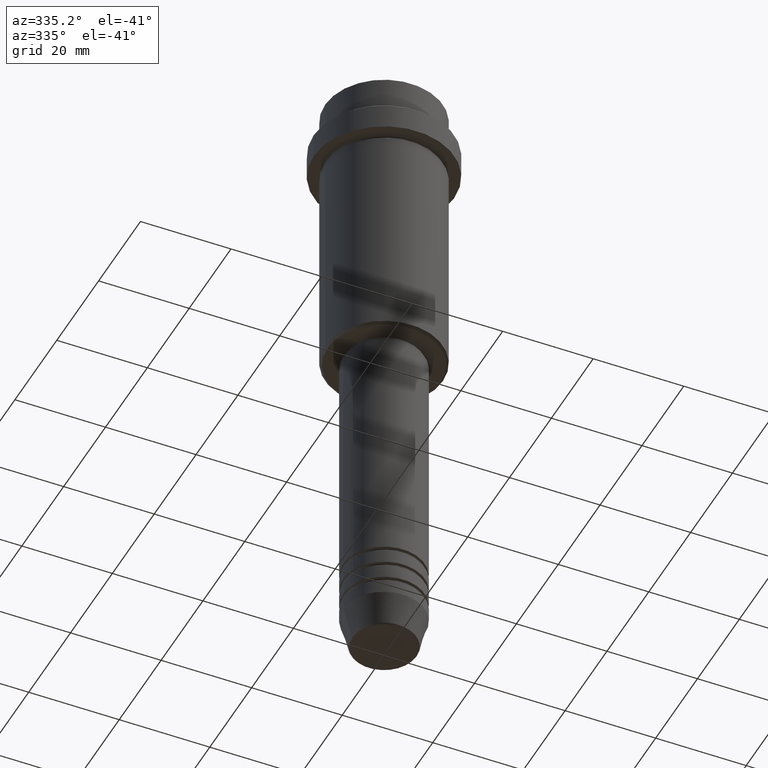
[diagram: clean part render]
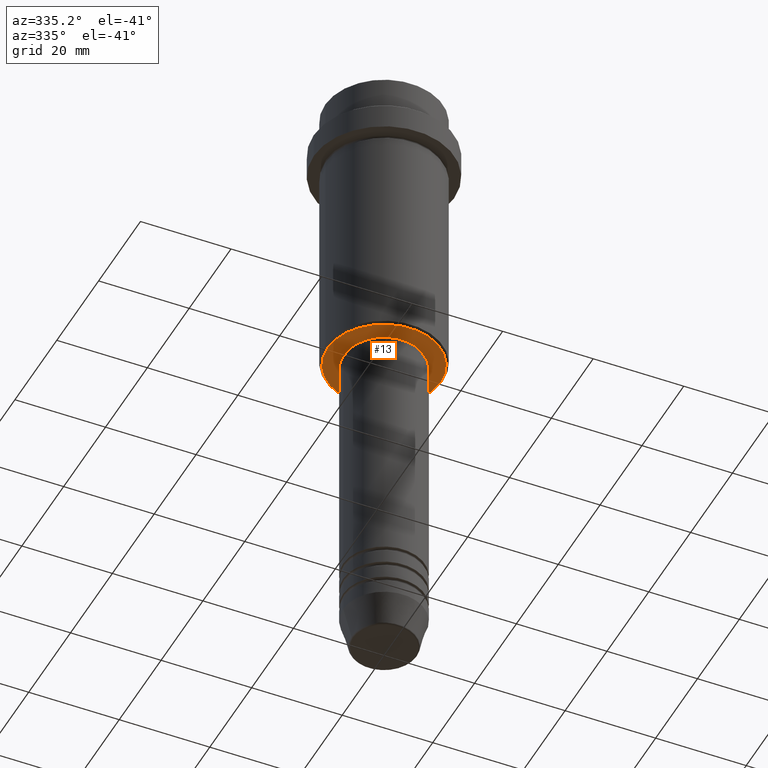
[diagram: same view with one face highlighted and labeled with its STEP entity id]
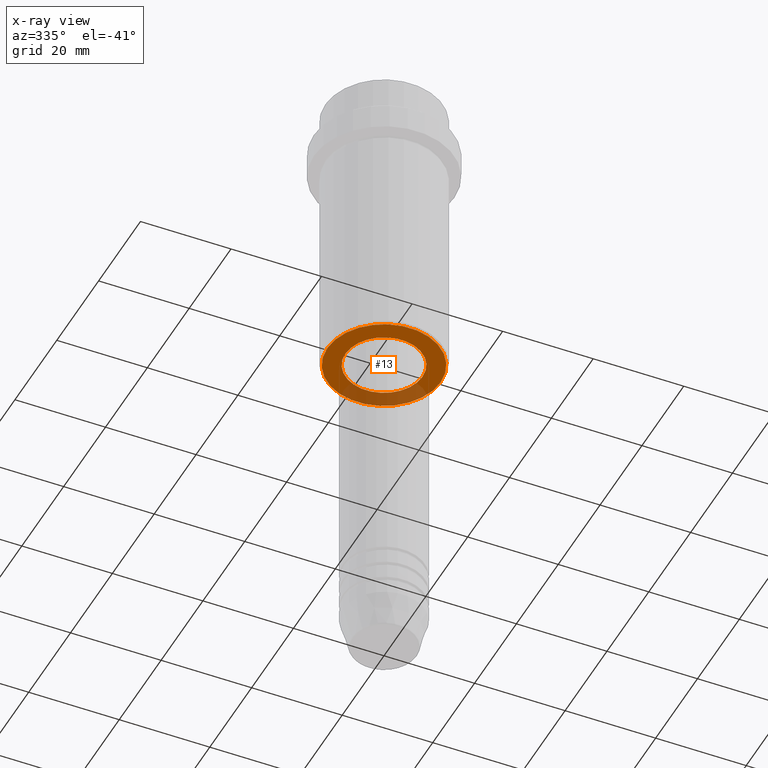
[diagram: x-ray of the same camera — body ghosted, the highlighted face saturated]
A machine part, auxiliary view. The second image highlights one B-rep face of the part: STEP entity #13.
The next image is the same camera in x-ray: the body ghosted, the highlighted face saturated — about 26% of this face is hidden behind the body in this view.
In plain terms, the highlighted planar face has unit normal (0, 0, -1).
Its self-contained STEP definition (entity closure, byte-faithful):
#13 = ADVANCED_FACE ( 'NONE', ( #341, #694 ), #1009, .T. ) ;
#37 = DIRECTION ( 'NONE',  ( 0.000000000000000000, 0.000000000000000000, -1.000000000000000000 ) ) ;
#98 = CARTESIAN_POINT ( 'NONE',  ( 0.000000000000000000, 0.000000000000000000, -65.00000000000001421 ) ) ;
#115 = CARTESIAN_POINT ( 'NONE',  ( -8.499999999999994671, 1.040949779275249745E-15, -65.00000000000001421 ) ) ;
#168 = DIRECTION ( 'NONE',  ( -1.000000000000000000, 0.000000000000000000, 0.000000000000000000 ) ) ;
#206 = CARTESIAN_POINT ( 'NONE',  ( 12.49999999999999645, 0.000000000000000000, -65.00000000000001421 ) ) ;
#222 = AXIS2_PLACEMENT_3D ( 'NONE', #673, #894, #344 ) ;
#268 = VERTEX_POINT ( 'NONE', #789 ) ;
#341 = FACE_OUTER_BOUND ( 'NONE', #933, .T. ) ;
#344 = DIRECTION ( 'NONE',  ( 1.000000000000000000, 0.000000000000000000, 0.000000000000000000 ) ) ;
#427 = DIRECTION ( 'NONE',  ( 1.000000000000000000, 0.000000000000000000, 0.000000000000000000 ) ) ;
#517 = CARTESIAN_POINT ( 'NONE',  ( 0.000000000000000000, 0.000000000000000000, -65.00000000000001421 ) ) ;
#529 = AXIS2_PLACEMENT_3D ( 'NONE', #921, #37, #1249 ) ;
#556 = EDGE_LOOP ( 'NONE', ( #732, #1163 ) ) ;
#563 = CIRCLE ( 'NONE', #747, 8.499999999999994671 ) ;
#605 = DIRECTION ( 'NONE',  ( 0.000000000000000000, 0.000000000000000000, -1.000000000000000000 ) ) ;
#629 = DIRECTION ( 'NONE',  ( 0.000000000000000000, 0.000000000000000000, -1.000000000000000000 ) ) ;
#632 = EDGE_CURVE ( 'NONE', #740, #268, #563, .T. ) ;
#654 = AXIS2_PLACEMENT_3D ( 'NONE', #1051, #605, #168 ) ;
#673 = CARTESIAN_POINT ( 'NONE',  ( 0.000000000000000000, 0.000000000000000000, -65.00000000000001421 ) ) ;
#694 = FACE_BOUND ( 'NONE', #556, .T. ) ;
#732 = ORIENTED_EDGE ( 'NONE', *, *, #918, .T. ) ;
#740 = VERTEX_POINT ( 'NONE', #115 ) ;
#747 = AXIS2_PLACEMENT_3D ( 'NONE', #98, #1177, #427 ) ;
#789 = CARTESIAN_POINT ( 'NONE',  ( 8.499999999999994671, 0.000000000000000000, -65.00000000000001421 ) ) ;
#807 = ORIENTED_EDGE ( 'NONE', *, *, #1203, .T. ) ;
#894 = DIRECTION ( 'NONE',  ( -0.000000000000000000, -0.000000000000000000, 1.000000000000000000 ) ) ;
#897 = VERTEX_POINT ( 'NONE', #1103 ) ;
#918 = EDGE_CURVE ( 'NONE', #268, #740, #1401, .T. ) ;
#921 = CARTESIAN_POINT ( 'NONE',  ( 0.000000000000000000, 13.00000000000000000, -65.00000000000001421 ) ) ;
#933 = EDGE_LOOP ( 'NONE', ( #807, #1202 ) ) ;
#984 = AXIS2_PLACEMENT_3D ( 'NONE', #517, #629, #1272 ) ;
#1009 = PLANE ( 'NONE',  #529 ) ;
#1027 = CIRCLE ( 'NONE', #984, 12.49999999999999645 ) ;
#1051 = CARTESIAN_POINT ( 'NONE',  ( 0.000000000000000000, 0.000000000000000000, -65.00000000000001421 ) ) ;
#1103 = CARTESIAN_POINT ( 'NONE',  ( -12.49999999999999645, 1.561424668912875111E-15, -65.00000000000001421 ) ) ;
#1163 = ORIENTED_EDGE ( 'NONE', *, *, #632, .T. ) ;
#1174 = EDGE_CURVE ( 'NONE', #897, #1335, #1236, .T. ) ;
#1177 = DIRECTION ( 'NONE',  ( -0.000000000000000000, -0.000000000000000000, 1.000000000000000000 ) ) ;
#1202 = ORIENTED_EDGE ( 'NONE', *, *, #1174, .T. ) ;
#1203 = EDGE_CURVE ( 'NONE', #1335, #897, #1027, .T. ) ;
#1236 = CIRCLE ( 'NONE', #654, 12.49999999999999645 ) ;
#1249 = DIRECTION ( 'NONE',  ( -1.000000000000000000, 0.000000000000000000, -0.000000000000000000 ) ) ;
#1272 = DIRECTION ( 'NONE',  ( -1.000000000000000000, 0.000000000000000000, 0.000000000000000000 ) ) ;
#1335 = VERTEX_POINT ( 'NONE', #206 ) ;
#1401 = CIRCLE ( 'NONE', #222, 8.499999999999994671 ) ;